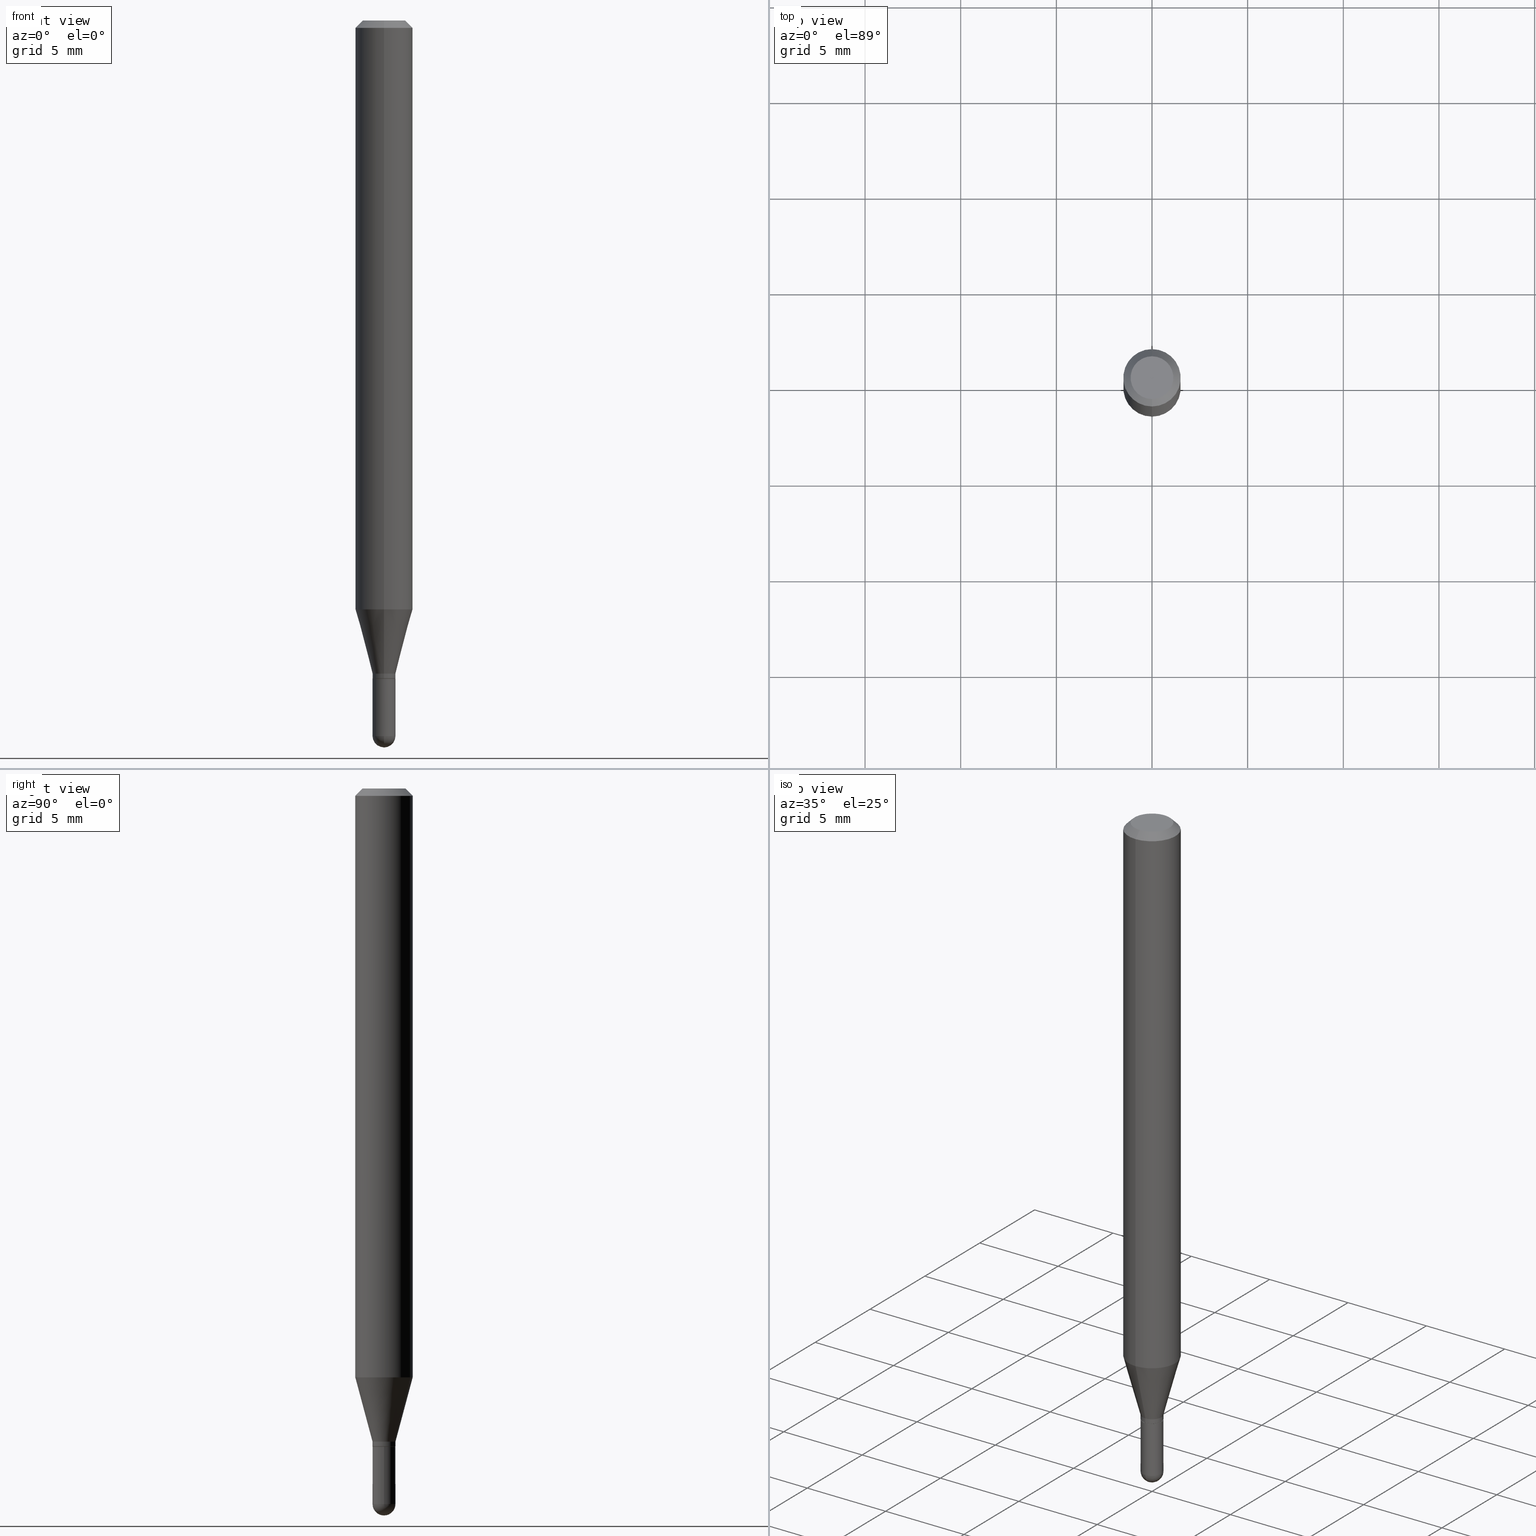
[diagram: canonical four-view strip — front | top / right | iso, engineering-drawing reading convention]
A machine part, canonical four-view strip (front | top / right | iso — engineering-drawing reading convention). The complete STEP part file that produces these views, byte-faithful:
ISO-10303-21;
HEADER;
FILE_DESCRIPTION (( 'STEP AP203' ),
    '1' );
FILE_NAME ('01951.STEP',
    '2024-03-07T19:46:55',
    ( '' ),
    ( '' ),
    'SwSTEP 2.0',
    'SolidWorks 2023',
    '' );
FILE_SCHEMA (( 'CONFIG_CONTROL_DESIGN' ));
ENDSEC;

DATA;
#1 = DIRECTION ( 'NONE',  ( -2.445468806185136597E-29, 3.491481338843145583E-15, 1.000000000000000000 ) ) ;
#2 = APPROVAL ( #85, 'UNSPECIFIED' ) ;
#3 = COORDINATED_UNIVERSAL_TIME_OFFSET ( 5, 0, .BEHIND. ) ;
#4 = AXIS2_PLACEMENT_3D ( 'NONE', #460, #348, #6 ) ;
#5 = AXIS2_PLACEMENT_3D ( 'NONE', #205, #214, #17 ) ;
#6 = DIRECTION ( 'NONE',  ( -6.982962677686265922E-15, -1.000000000000000000, 0.000000000000000000 ) ) ;
#7 = CARTESIAN_POINT ( 'NONE',  ( -1.647979191933643482E-16, -0.02360000000000488443, -1.344100000000000072 ) ) ;
#8 = DIRECTION ( 'NONE',  ( -6.982962677686265922E-15, -1.000000000000000000, 0.000000000000000000 ) ) ;
#9 = DIRECTION ( 'NONE',  ( 1.000000000000000000, -6.982962677686267499E-15, 4.876176775795935793E-29 ) ) ;
#10 = PRODUCT_DEFINITION_FORMATION_WITH_SPECIFIED_SOURCE ( 'ANY', '', #372, .NOT_KNOWN. ) ;
#11 = CALENDAR_DATE ( 2024, 7, 3 ) ;
#12 = FACE_OUTER_BOUND ( 'NONE', #91, .T. ) ;
#13 = EDGE_CURVE ( 'NONE', #356, #191, #442, .T. ) ;
#14 = APPROVAL_DATE_TIME ( #285, #2 ) ;
#15 = DIRECTION ( 'NONE',  ( -6.982962677686266711E-15, -1.000000000000000000, 0.000000000000000000 ) ) ;
#16 = CC_DESIGN_PERSON_AND_ORGANIZATION_ASSIGNMENT ( #274, #420, ( #10 ) ) ;
#17 = DIRECTION ( 'NONE',  ( -6.982962677686265922E-15, -1.000000000000000000, 3.491511898180612883E-15 ) ) ;
#18 = AXIS2_PLACEMENT_3D ( 'NONE', #391, #240, #395 ) ;
#19 = CARTESIAN_POINT ( 'NONE',  ( -1.647979191933972339E-16, -0.02360000000000019374, 8.239968079706313705E-17 ) ) ;
#20 = PLANE ( 'NONE',  #31 ) ;
#21 = DIRECTION ( 'NONE',  ( -2.445468806185136597E-29, 3.491481338843145583E-15, 1.000000000000000000 ) ) ;
#22 = ORIENTED_EDGE ( 'NONE', *, *, #499, .T. ) ;
#23 = LINE ( 'NONE', #411, #478 ) ;
#24 = PERSON_AND_ORGANIZATION_ROLE ( 'classification_officer' ) ;
#25 = ADVANCED_FACE ( 'NONE', ( #163 ), #474, .T. ) ;
#26 = COORDINATED_UNIVERSAL_TIME_OFFSET ( 5, 0, .BEHIND. ) ;
#27 = CARTESIAN_POINT ( 'NONE',  ( 1.676880856394178568E-16, 0.02359999999999550305, -1.344100000000000072 ) ) ;
#28 = CONICAL_SURFACE ( 'NONE', #277, 0.02360000000000019374, 0.2617993877991502960 ) ;
#29 = EDGE_CURVE ( 'NONE', #353, #492, #509, .T. ) ;
#30 = ORIENTED_EDGE ( 'NONE', *, *, #416, .T. ) ;
#31 = AXIS2_PLACEMENT_3D ( 'NONE', #493, #378, #264 ) ;
#32 = CARTESIAN_POINT ( 'NONE',  ( 0.000000000000000000, 0.000000000000000000, 0.000000000000000000 ) ) ;
#33 = CARTESIAN_POINT ( 'NONE',  ( -0.02360000000000000292, -4.767346212748459573E-15, -1.472499999999999698 ) ) ;
#34 = VERTEX_POINT ( 'NONE', #419 ) ;
#35 = ADVANCED_FACE ( 'NONE', ( #71 ), #185, .T. ) ;
#36 = EDGE_CURVE ( 'NONE', #308, #473, #383, .T. ) ;
#37 = LENGTH_MEASURE_WITH_UNIT ( LENGTH_MEASURE( 0.02539999999999999897 ), #126 );
#38 = LINE ( 'NONE', #79, #122 ) ;
#39 = APPROVAL_ROLE ( '' ) ;
#40 = DIRECTION ( 'NONE',  ( 6.982962677686265922E-15, 1.000000000000000000, -3.505890868245046092E-15 ) ) ;
#41 = EDGE_CURVE ( 'NONE', #144, #353, #161, .T. ) ;
#42 = CIRCLE ( 'NONE', #110, 0.02360000000000019721 ) ;
#43 = AXIS2_PLACEMENT_3D ( 'NONE', #447, #109, #66 ) ;
#44 = DIRECTION ( 'NONE',  ( 1.000000000000000000, -7.105427357601001070E-15, 4.926315508542082329E-29 ) ) ;
#45 = ORIENTED_EDGE ( 'NONE', *, *, #453, .T. ) ;
#46 = ORIENTED_EDGE ( 'NONE', *, *, #29, .T. ) ;
#47 = LINE ( 'NONE', #256, #347 ) ;
#48 = CARTESIAN_POINT ( 'NONE',  ( 0.000000000000000000, 0.000000000000000000, 0.000000000000000000 ) ) ;
#49 = ORIENTED_EDGE ( 'NONE', *, *, #219, .F. ) ;
#50 = CARTESIAN_POINT ( 'NONE',  ( 3.312114048917222674E-29, -4.728903714895822347E-15, -1.354400000000000270 ) ) ;
#51 = CIRCLE ( 'NONE', #336, 0.02309999999999999901 ) ;
#52 = CIRCLE ( 'NONE', #267, 0.02360000000000019374 ) ;
#53 = ORIENTED_EDGE ( 'NONE', *, *, #494, .F. ) ;
#54 = DIRECTION ( 'NONE',  ( -2.445447466713837781E-29, 3.491511898180612883E-15, 1.000000000000000000 ) ) ;
#55 = ORIENTED_EDGE ( 'NONE', *, *, #304, .T. ) ;
#56 = PLANE ( 'NONE',  #407 ) ;
#57 = ORIENTED_EDGE ( 'NONE', *, *, #171, .F. ) ;
#58 = DIRECTION ( 'NONE',  ( -2.445468806185136597E-29, 3.491481338843145583E-15, 1.000000000000000000 ) ) ;
#59 = ORIENTED_EDGE ( 'NONE', *, *, #84, .T. ) ;
#60 = VECTOR ( 'NONE', #289, 39.37007874015748143 ) ;
#61 = DIRECTION ( 'NONE',  ( 1.000000000000000000, -6.982962677686265133E-15, 4.883557194083112340E-29 ) ) ;
#62 = DIRECTION ( 'NONE',  ( 1.000000000000000000, -6.982962677686258033E-15, 0.000000000000000000 ) ) ;
#63 = FACE_OUTER_BOUND ( 'NONE', #106, .T. ) ;
#64 = CIRCLE ( 'NONE', #102, 0.02359999999999986067 ) ;
#65 = AXIS2_PLACEMENT_3D ( 'NONE', #450, #376, #302 ) ;
#66 = DIRECTION ( 'NONE',  ( -6.982962677686265922E-15, -1.000000000000000000, 3.491511898180612883E-15 ) ) ;
#67 = ADVANCED_FACE ( 'NONE', ( #463 ), #346, .T. ) ;
#68 = EDGE_CURVE ( 'NONE', #511, #190, #387, .T. ) ;
#69 = ORIENTED_EDGE ( 'NONE', *, *, #462, .F. ) ;
#70 = CALENDAR_DATE ( 2024, 7, 3 ) ;
#71 = FACE_OUTER_BOUND ( 'NONE', #351, .T. ) ;
#72 = ORIENTED_EDGE ( 'NONE', *, *, #96, .F. ) ;
#73 = DIRECTION ( 'NONE',  ( -2.445447466713837781E-29, 3.491511898180612883E-15, 1.000000000000000000 ) ) ;
#74 = CIRCLE ( 'NONE', #254, 0.02360000000000000292 ) ;
#75 = APPROVAL_PERSON_ORGANIZATION ( #151, #291, #39 ) ;
#76 = APPLICATION_PROTOCOL_DEFINITION ( 'international standard', 'config_control_design', 1994, #368 ) ;
#77 = CARTESIAN_POINT ( 'NONE',  ( 3.598934624665150371E-29, -5.144096437892519397E-15, -1.472499999999999920 ) ) ;
#78 = EDGE_LOOP ( 'NONE', ( #501, #46, #104, #87 ) ) ;
#79 = CARTESIAN_POINT ( 'NONE',  ( 1.641353719606162434E-16, 0.02309999999999527015, -1.354400000000000270 ) ) ;
#80 = EDGE_CURVE ( 'NONE', #93, #208, #64, .T. ) ;
#81 = CARTESIAN_POINT ( 'NONE',  ( 4.195754854663390985E-16, 0.05904999999999999832, -2.061737775875651784E-16 ) ) ;
#82 = CC_DESIGN_APPROVAL ( #279, ( #10 ) ) ;
#83 = CARTESIAN_POINT ( 'NONE',  ( 0.000000000000000000, 0.000000000000000000, 0.000000000000000000 ) ) ;
#84 = EDGE_CURVE ( 'NONE', #144, #166, #157, .T. ) ;
#85 = APPROVAL_STATUS ( 'not_yet_approved' ) ;
#86 = DIRECTION ( 'NONE',  ( -2.445468806185136597E-29, 3.491481338843145583E-15, 1.000000000000000000 ) ) ;
#87 = ORIENTED_EDGE ( 'NONE', *, *, #84, .F. ) ;
#88 = UNCERTAINTY_MEASURE_WITH_UNIT (LENGTH_MEASURE( 1.000000000000000082E-05 ), #239, 'distance_accuracy_value', 'NONE');
#89 = DIRECTION ( 'NONE',  ( -2.445447466713837781E-29, 3.491511898180612883E-15, 1.000000000000000000 ) ) ;
#90 = CC_DESIGN_PERSON_AND_ORGANIZATION_ASSIGNMENT ( #390, #24, ( #364 ) ) ;
#91 = EDGE_LOOP ( 'NONE', ( #45, #449, #361, #510, #115 ) ) ;
#92 = FACE_OUTER_BOUND ( 'NONE', #314, .T. ) ;
#93 = VERTEX_POINT ( 'NONE', #421 ) ;
#94 = APPROVAL_PERSON_ORGANIZATION ( #192, #279, #154 ) ;
#95 = MANIFOLD_SOLID_BREP ( 'Body-Move/Copy2[1]', #379 ) ;
#96 = EDGE_CURVE ( 'NONE', #301, #480, #74, .T. ) ;
#97 = FACE_OUTER_BOUND ( 'NONE', #245, .T. ) ;
#98 = ORIENTED_EDGE ( 'NONE', *, *, #448, .T. ) ;
#99 = DIRECTION ( 'NONE',  ( -2.445447466713837781E-29, 3.491511898180612883E-15, 1.000000000000000000 ) ) ;
#100 = VERTEX_POINT ( 'NONE', #310 ) ;
#101 = CARTESIAN_POINT ( 'NONE',  ( 4.195754854663685822E-16, 0.05904999999999574478, -1.211798798871684735 ) ) ;
#102 = AXIS2_PLACEMENT_3D ( 'NONE', #121, #44, #281 ) ;
#103 = AXIS2_PLACEMENT_3D ( 'NONE', #184, #337, #386 ) ;
#104 = ORIENTED_EDGE ( 'NONE', *, *, #128, .F. ) ;
#105 = CARTESIAN_POINT ( 'NONE',  ( 1.676880856394175610E-16, 0.02359999999999539202, -1.353900000000000103 ) ) ;
#106 = EDGE_LOOP ( 'NONE', ( #242, #394, #231, #153 ) ) ;
#107 = DIRECTION ( 'NONE',  ( -1.000000000000000000, 6.982962677686265922E-15, -4.876176775795935793E-29 ) ) ;
#108 = EDGE_CURVE ( 'NONE', #473, #429, #42, .T. ) ;
#109 = DIRECTION ( 'NONE',  ( -2.445447466713837781E-29, 3.491511898180612883E-15, 1.000000000000000000 ) ) ;
#110 = AXIS2_PLACEMENT_3D ( 'NONE', #118, #283, #431 ) ;
#111 = CIRCLE ( 'NONE', #307, 0.04404999999999999888 ) ;
#112 = ORIENTED_EDGE ( 'NONE', *, *, #164, .F. ) ;
#113 =( NAMED_UNIT ( * ) PLANE_ANGLE_UNIT ( ) SI_UNIT ( $, .RADIAN. ) );
#114 = DIRECTION ( 'NONE',  ( -2.445447466713837781E-29, 3.491511898180612883E-15, 1.000000000000000000 ) ) ;
#115 = ORIENTED_EDGE ( 'NONE', *, *, #369, .T. ) ;
#116 = ORIENTED_EDGE ( 'NONE', *, *, #189, .T. ) ;
#117 = PERSON_AND_ORGANIZATION ( #137, #179 ) ;
#118 = CARTESIAN_POINT ( 'NONE',  ( 3.310891325183864690E-29, -4.727157958946731511E-15, -1.353900000000000103 ) ) ;
#119 = ORIENTED_EDGE ( 'NONE', *, *, #462, .T. ) ;
#120 = APPROVAL_STATUS ( 'not_yet_approved' ) ;
#121 = CARTESIAN_POINT ( 'NONE',  ( 3.598934624665150371E-29, -5.144096437892519397E-15, -1.472499999999999920 ) ) ;
#122 = VECTOR ( 'NONE', #197, 39.37007874015748143 ) ;
#123 = AXIS2_PLACEMENT_3D ( 'NONE', #176, #414, #498 ) ;
#124 = CALENDAR_DATE ( 2024, 7, 3 ) ;
#125 = DIRECTION ( 'NONE',  ( -4.937700262164674260E-15, -0.7071067811865632269, 0.7071067811865319186 ) ) ;
#126 =( LENGTH_UNIT ( ) NAMED_UNIT ( * ) SI_UNIT ( $, .METRE. ) );
#127 = DIRECTION ( 'NONE',  ( 1.000000000000000000, -6.982962677686258033E-15, 0.000000000000000000 ) ) ;
#128 = EDGE_CURVE ( 'NONE', #166, #492, #435, .T. ) ;
#129 = DIRECTION ( 'NONE',  ( -6.982962677686265922E-15, -1.000000000000000000, 0.000000000000000000 ) ) ;
#130 = AXIS2_PLACEMENT_3D ( 'NONE', #135, #54, #329 ) ;
#131 = SHAPE_DEFINITION_REPRESENTATION ( #169, #342 ) ;
#132 = ORIENTED_EDGE ( 'NONE', *, *, #358, .T. ) ;
#133 = DIRECTION ( 'NONE',  ( -6.982962677686265922E-15, -1.000000000000000000, 0.000000000000000000 ) ) ;
#134 = CARTESIAN_POINT ( 'NONE',  ( 3.286925940010068942E-29, -4.692941142344561547E-15, -1.344100000000000072 ) ) ;
#135 = CARTESIAN_POINT ( 'NONE',  ( 3.310891325183864690E-29, -4.727157958946731511E-15, -1.353900000000000103 ) ) ;
#136 = ORIENTED_EDGE ( 'NONE', *, *, #381, .F. ) ;
#137 = PERSON ( 'UNSPECIFIED', 'UNSPECIFIED', 'UNSPECIFIED', ('UNSPECIFIED'), ('UNSPECIFIED'), ('UNSPECIFIED') ) ;
#138 = DIRECTION ( 'NONE',  ( -2.445447466713837781E-29, 3.491511898180612883E-15, 1.000000000000000000 ) ) ;
#139 = ORIENTED_EDGE ( 'NONE', *, *, #128, .T. ) ;
#140 = EDGE_LOOP ( 'NONE', ( #180, #284 ) ) ;
#141 = CARTESIAN_POINT ( 'NONE',  ( 5.835056949264010170E-46, -8.331060487794481597E-32, -2.386089674257075176E-17 ) ) ;
#142 = CARTESIAN_POINT ( 'NONE',  ( 3.598934624665150371E-29, -5.144096437892519397E-15, -1.472499999999999920 ) ) ;
#143 = DIRECTION ( 'NONE',  ( -1.000000000000000000, 6.982962677686265922E-15, -4.883557194083112340E-29 ) ) ;
#144 = VERTEX_POINT ( 'NONE', #7 ) ;
#145 = AXIS2_PLACEMENT_3D ( 'NONE', #475, #290, #129 ) ;
#146 = LOCAL_TIME ( 14, 46, 55.00000000000000000, #305 ) ;
#147 = CARTESIAN_POINT ( 'NONE',  ( -4.051124067684085231E-16, -0.05905000000000005383, -0.01499999999999981730 ) ) ;
#148 = EDGE_LOOP ( 'NONE', ( #55, #119 ) ) ;
#149 = DIRECTION ( 'NONE',  ( -2.445447466713837781E-29, 3.491511898180613277E-15, 1.000000000000000000 ) ) ;
#150 = ADVANCED_FACE ( 'NONE', ( #275 ), #457, .T. ) ;
#151 = PERSON_AND_ORGANIZATION ( #137, #179 ) ;
#152 = CIRCLE ( 'NONE', #331, 0.02360000000000000292 ) ;
#153 = ORIENTED_EDGE ( 'NONE', *, *, #448, .F. ) ;
#154 = APPROVAL_ROLE ( '' ) ;
#155 = CARTESIAN_POINT ( 'NONE',  ( -1.647979191933643482E-16, -0.02360000000000488443, -1.344100000000000072 ) ) ;
#156 = PERSON_AND_ORGANIZATION ( #137, #179 ) ;
#157 = LINE ( 'NONE', #155, #202 ) ;
#158 = VERTEX_POINT ( 'NONE', #33 ) ;
#159 = COORDINATED_UNIVERSAL_TIME_OFFSET ( 5, 0, .BEHIND. ) ;
#160 = DIRECTION ( 'NONE',  ( -6.982962677686265922E-15, -1.000000000000000000, 4.626330217890369336E-15 ) ) ;
#161 = CIRCLE ( 'NONE', #4, 0.02360000000000019374 ) ;
#162 = CONICAL_SURFACE ( 'NONE', #195, 0.02309999999999999901, 0.7853981633974739252 ) ;
#163 = FACE_OUTER_BOUND ( 'NONE', #248, .T. ) ;
#164 = EDGE_CURVE ( 'NONE', #100, #429, #38, .T. ) ;
#165 = DIRECTION ( 'NONE',  ( -2.445447466713837781E-29, 3.491511898180612883E-15, 1.000000000000000000 ) ) ;
#166 = VERTEX_POINT ( 'NONE', #316 ) ;
#167 = DIRECTION ( 'NONE',  ( 4.937700262164548042E-15, 0.7071067811865451302, -0.7071067811865499042 ) ) ;
#168 = COORDINATED_UNIVERSAL_TIME_OFFSET ( 5, 0, .BEHIND. ) ;
#169 = PRODUCT_DEFINITION_SHAPE ( 'NONE', 'NONE',  #313 ) ;
#170 = DIRECTION ( 'NONE',  ( -6.982962677686266711E-15, -1.000000000000000000, 0.000000000000000000 ) ) ;
#171 = EDGE_CURVE ( 'NONE', #492, #511, #350, .T. ) ;
#172 = CARTESIAN_POINT ( 'NONE',  ( 1.676880856394191140E-16, 0.02359999999999478834, -1.472499999999999698 ) ) ;
#173 = CYLINDRICAL_SURFACE ( 'NONE', #504, 0.02360000000000000292 ) ;
#174 = EDGE_CURVE ( 'NONE', #492, #166, #425, .T. ) ;
#175 = CARTESIAN_POINT ( 'NONE',  ( 5.835056949264010170E-46, -8.331060487794481597E-32, -2.386089674257075176E-17 ) ) ;
#176 = CARTESIAN_POINT ( 'NONE',  ( 3.312142951097148704E-29, -4.728862325329155827E-15, -1.354399999999999826 ) ) ;
#177 = AXIS2_PLACEMENT_3D ( 'NONE', #272, #73, #160 ) ;
#178 = DIMENSIONAL_EXPONENTS ( 1.000000000000000000, 0.000000000000000000, 0.000000000000000000, 0.000000000000000000, 0.000000000000000000, 0.000000000000000000, 0.000000000000000000 ) ;
#179 = ORGANIZATION ( 'UNSPECIFIED', 'UNSPECIFIED', '' ) ;
#180 = ORIENTED_EDGE ( 'NONE', *, *, #189, .F. ) ;
#181 = SPHERICAL_SURFACE ( 'NONE', #247, 0.02359999999999986067 ) ;
#182 = CARTESIAN_POINT ( 'NONE',  ( 3.600952817107612585E-29, -5.141206271446529958E-15, -1.472499999999999698 ) ) ;
#183 = APPLICATION_CONTEXT ( 'configuration controlled 3d designs of mechanical parts and assemblies' ) ;
#184 = CARTESIAN_POINT ( 'NONE',  ( 3.668171200070762347E-31, -5.237267847270927755E-17, -0.01500000000000002373 ) ) ;
#185 = CONICAL_SURFACE ( 'NONE', #292, 0.05904999999999999832, 0.7853981633974483900 ) ;
#186 = CIRCLE ( 'NONE', #402, 0.02359999999999986067 ) ;
#187 = VERTEX_POINT ( 'NONE', #204 ) ;
#188 = CYLINDRICAL_SURFACE ( 'NONE', #287, 0.02360000000000019374 ) ;
#189 = EDGE_CURVE ( 'NONE', #308, #100, #324, .T. ) ;
#190 = VERTEX_POINT ( 'NONE', #405 ) ;
#191 = VERTEX_POINT ( 'NONE', #327 ) ;
#192 = PERSON_AND_ORGANIZATION ( #137, #179 ) ;
#193 = DIRECTION ( 'NONE',  ( 6.982962677686265922E-15, 1.000000000000000000, -3.505890868245046092E-15 ) ) ;
#194 = AXIS2_PLACEMENT_3D ( 'NONE', #175, #295, #198 ) ;
#195 = AXIS2_PLACEMENT_3D ( 'NONE', #434, #89, #15 ) ;
#196 = ORIENTED_EDGE ( 'NONE', *, *, #108, .F. ) ;
#197 = DIRECTION ( 'NONE',  ( 5.024295867788190974E-15, 0.7071067811865681119, 0.7071067811865270336 ) ) ;
#198 = DIRECTION ( 'NONE',  ( -6.982962677686265133E-15, -1.000000000000000000, 3.491511898180612883E-15 ) ) ;
#199 = CARTESIAN_POINT ( 'NONE',  ( -1.613064378545196401E-16, -0.02310000000000472786, -1.354400000000000270 ) ) ;
#200 = ADVANCED_FACE ( 'NONE', ( #401 ), #306, .T. ) ;
#201 = EDGE_LOOP ( 'NONE', ( #259, #404, #360, #72 ) ) ;
#202 = VECTOR ( 'NONE', #237, 39.37007874015748143 ) ;
#203 = AXIS2_PLACEMENT_3D ( 'NONE', #32, #343, #269 ) ;
#204 = CARTESIAN_POINT ( 'NONE',  ( -0.02360000000000000292, -4.767346212748459573E-15, -1.354399999999999826 ) ) ;
#205 = CARTESIAN_POINT ( 'NONE',  ( 0.000000000000000000, 0.000000000000000000, 0.000000000000000000 ) ) ;
#206 = ADVANCED_FACE ( 'NONE', ( #12 ), #173, .T. ) ;
#207 = CARTESIAN_POINT ( 'NONE',  ( -4.123439461173739834E-16, -0.05904999999999999832, 2.061737775875651784E-16 ) ) ;
#208 = VERTEX_POINT ( 'NONE', #172 ) ;
#209 = CIRCLE ( 'NONE', #130, 0.02360000000000019721 ) ;
#210 = FACE_OUTER_BOUND ( 'NONE', #78, .T. ) ;
#211 = ORIENTED_EDGE ( 'NONE', *, *, #494, .T. ) ;
#212 = DIRECTION ( 'NONE',  ( -2.445447466713837781E-29, 3.491511898180612883E-15, 1.000000000000000000 ) ) ;
#213 = ORIENTED_EDGE ( 'NONE', *, *, #416, .F. ) ;
#214 = DIRECTION ( 'NONE',  ( -2.445447466713837781E-29, 3.491511898180612883E-15, 1.000000000000000000 ) ) ;
#215 = ADVANCED_FACE ( 'NONE', ( #92 ), #398, .T. ) ;
#216 = LINE ( 'NONE', #147, #349 ) ;
#217 = VECTOR ( 'NONE', #427, 39.37007874015748143 ) ;
#218 = CC_DESIGN_APPROVAL ( #2, ( #364 ) ) ;
#219 = EDGE_CURVE ( 'NONE', #166, #190, #326, .T. ) ;
#220 = DIRECTION ( 'NONE',  ( -2.445447466713837781E-29, 3.491511898180613277E-15, 1.000000000000000000 ) ) ;
#221 = ORIENTED_EDGE ( 'NONE', *, *, #29, .F. ) ;
#222 = DIRECTION ( 'NONE',  ( 2.438088387897960049E-29, -3.491481338843145188E-15, -1.000000000000000000 ) ) ;
#223 = DIRECTION ( 'NONE',  ( -6.982962677686265133E-15, -1.000000000000000000, 3.491511898180612883E-15 ) ) ;
#224 = EDGE_CURVE ( 'NONE', #480, #34, #47, .T. ) ;
#225 = VECTOR ( 'NONE', #393, 39.37007874015748143 ) ;
#226 = AXIS2_PLACEMENT_3D ( 'NONE', #410, #222, #107 ) ;
#227 = CYLINDRICAL_SURFACE ( 'NONE', #65, 0.02360000000000019374 ) ;
#228 = ADVANCED_FACE ( 'NONE', ( #400 ), #56, .F. ) ;
#229 = ORIENTED_EDGE ( 'NONE', *, *, #490, .T. ) ;
#230 = EDGE_CURVE ( 'NONE', #429, #473, #209, .T. ) ;
#231 = ORIENTED_EDGE ( 'NONE', *, *, #41, .F. ) ;
#232 = CARTESIAN_POINT ( 'NONE',  ( 3.312114048917222674E-29, -4.728903714895822347E-15, -1.354400000000000270 ) ) ;
#233 = VECTOR ( 'NONE', #167, 39.37007874015748143 ) ;
#234 = LOCAL_TIME ( 14, 46, 55.00000000000000000, #3 ) ;
#235 = ORIENTED_EDGE ( 'NONE', *, *, #174, .F. ) ;
#236 = APPROVAL_DATE_TIME ( #241, #291 ) ;
#237 = DIRECTION ( 'NONE',  ( -1.807323732225330928E-15, -0.2588190451025182970, 0.9659258262890689783 ) ) ;
#238 = ADVANCED_FACE ( 'NONE', ( #210 ), #28, .T. ) ;
#239 =( CONVERSION_BASED_UNIT ( 'INCH', #37 ) LENGTH_UNIT ( ) NAMED_UNIT ( #178 ) );
#240 = DIRECTION ( 'NONE',  ( -2.445447466713837781E-29, 3.491511898180612883E-15, 1.000000000000000000 ) ) ;
#241 = DATE_AND_TIME ( #124, #317 ) ;
#242 = ORIENTED_EDGE ( 'NONE', *, *, #108, .T. ) ;
#243 = CARTESIAN_POINT ( 'NONE',  ( 3.668171200070762347E-31, -5.237267847270927755E-17, -0.01500000000000002373 ) ) ;
#244 = EDGE_CURVE ( 'NONE', #356, #511, #253, .T. ) ;
#245 = EDGE_LOOP ( 'NONE', ( #57, #507, #397, #340 ) ) ;
#246 = AXIS2_PLACEMENT_3D ( 'NONE', #232, #433, #389 ) ;
#247 = AXIS2_PLACEMENT_3D ( 'NONE', #265, #61, #406 ) ;
#248 = EDGE_LOOP ( 'NONE', ( #344, #229, #53, #377 ) ) ;
#249 = CARTESIAN_POINT ( 'NONE',  ( 3.312114048917222674E-29, -4.728903714895822347E-15, -1.354400000000000270 ) ) ;
#250 = DESIGN_CONTEXT ( 'detailed design', #183, 'design' ) ;
#251 = ORIENTED_EDGE ( 'NONE', *, *, #358, .F. ) ;
#252 = DIRECTION ( 'NONE',  ( 1.000000000000000000, -6.982962677686258033E-15, 0.000000000000000000 ) ) ;
#253 = LINE ( 'NONE', #367, #233 ) ;
#254 = AXIS2_PLACEMENT_3D ( 'NONE', #354, #1, #127 ) ;
#255 = ORIENTED_EDGE ( 'NONE', *, *, #36, .T. ) ;
#256 = CARTESIAN_POINT ( 'NONE',  ( 0.02360000000000000292, -1.647979191933959273E-16, 1.150777719087840955E-30 ) ) ;
#257 = EDGE_CURVE ( 'NONE', #100, #308, #51, .T. ) ;
#258 = CYLINDRICAL_SURFACE ( 'NONE', #5, 0.05904999999999999832 ) ;
#259 = ORIENTED_EDGE ( 'NONE', *, *, #490, .F. ) ;
#260 = ORIENTED_EDGE ( 'NONE', *, *, #471, .F. ) ;
#261 = CYLINDRICAL_SURFACE ( 'NONE', #43, 0.05904999999999999832 ) ;
#262 = ORIENTED_EDGE ( 'NONE', *, *, #164, .T. ) ;
#263 = AXIS2_PLACEMENT_3D ( 'NONE', #357, #165, #170 ) ;
#264 = DIRECTION ( 'NONE',  ( 6.982962677686265922E-15, 1.000000000000000000, -3.491511898180613277E-15 ) ) ;
#265 = CARTESIAN_POINT ( 'NONE',  ( 3.598934624665150371E-29, -5.144096437892519397E-15, -1.472499999999999920 ) ) ;
#266 = FACE_OUTER_BOUND ( 'NONE', #298, .T. ) ;
#267 = AXIS2_PLACEMENT_3D ( 'NONE', #481, #477, #133 ) ;
#268 = EDGE_LOOP ( 'NONE', ( #221, #132, #59, #235 ) ) ;
#269 = DIRECTION ( 'NONE',  ( 1.000000000000000000, 0.000000000000000000, 0.000000000000000000 ) ) ;
#270 = CC_DESIGN_PERSON_AND_ORGANIZATION_ASSIGNMENT ( #117, #472, ( #10 ) ) ;
#271 = CARTESIAN_POINT ( 'NONE',  ( 3.668171200070762347E-31, -5.237267847270927755E-17, -0.01500000000000002373 ) ) ;
#272 = CARTESIAN_POINT ( 'NONE',  ( 2.963390302867632407E-29, -4.231009924461461334E-15, -1.211798798871684513 ) ) ;
#273 = MANIFOLD_SOLID_BREP ( 'Body-Move/Copy2[2]', #466 ) ;
#274 = PERSON_AND_ORGANIZATION ( #137, #179 ) ;
#275 = FACE_OUTER_BOUND ( 'NONE', #363, .T. ) ;
#276 = ORIENTED_EDGE ( 'NONE', *, *, #68, .T. ) ;
#277 = AXIS2_PLACEMENT_3D ( 'NONE', #134, #212, #8 ) ;
#278 = CC_DESIGN_SECURITY_CLASSIFICATION ( #364, ( #10 ) ) ;
#279 = APPROVAL ( #120, 'UNSPECIFIED' ) ;
#280 = DATE_AND_TIME ( #512, #234 ) ;
#281 = DIRECTION ( 'NONE',  ( 7.105427357601001070E-15, 1.000000000000000000, 0.000000000000000000 ) ) ;
#282 = ADVANCED_FACE ( 'NONE', ( #321 ), #162, .T. ) ;
#283 = DIRECTION ( 'NONE',  ( -2.445447466713837781E-29, 3.491511898180612883E-15, 1.000000000000000000 ) ) ;
#284 = ORIENTED_EDGE ( 'NONE', *, *, #257, .F. ) ;
#285 = DATE_AND_TIME ( #11, #426 ) ;
#286 = DIRECTION ( 'NONE',  ( -2.445468806185136877E-29, 3.491481338843145188E-15, 1.000000000000000000 ) ) ;
#287 = AXIS2_PLACEMENT_3D ( 'NONE', #489, #332, #341 ) ;
#288 = CARTESIAN_POINT ( 'NONE',  ( -1.613064378545196401E-16, -0.02310000000000472786, -1.354400000000000270 ) ) ;
#289 = DIRECTION ( 'NONE',  ( -2.445447466713837781E-29, 3.491511898180613277E-15, 1.000000000000000000 ) ) ;
#290 = DIRECTION ( 'NONE',  ( -2.445447466713837781E-29, 3.491511898180612883E-15, 1.000000000000000000 ) ) ;
#291 = APPROVAL ( #464, 'UNSPECIFIED' ) ;
#292 = AXIS2_PLACEMENT_3D ( 'NONE', #312, #320, #40 ) ;
#293 = CIRCLE ( 'NONE', #325, 0.02360000000000000292 ) ;
#294 = CARTESIAN_POINT ( 'NONE',  ( -1.647979191933593685E-16, -0.02360000000000507178, -1.472499999999999698 ) ) ;
#295 = DIRECTION ( 'NONE',  ( -2.445447466713837781E-29, 3.491511898180612883E-15, 1.000000000000000000 ) ) ;
#296 = CARTESIAN_POINT ( 'NONE',  ( -1.647979191933647180E-16, -0.02360000000000500586, -1.353900000000000103 ) ) ;
#297 = DIRECTION ( 'NONE',  ( -6.982962677686265133E-15, -1.000000000000000000, 0.000000000000000000 ) ) ;
#298 = EDGE_LOOP ( 'NONE', ( #260, #436, #98, #251 ) ) ;
#299 = AXIS2_PLACEMENT_3D ( 'NONE', #271, #465, #193 ) ;
#300 = CARTESIAN_POINT ( 'NONE',  ( 3.600952817107612585E-29, -5.141206271446529958E-15, -1.472499999999999698 ) ) ;
#301 = VERTEX_POINT ( 'NONE', #294 ) ;
#302 = DIRECTION ( 'NONE',  ( -6.982962677686265922E-15, -1.000000000000000000, 3.491511898180612883E-15 ) ) ;
#303 = FACE_OUTER_BOUND ( 'NONE', #148, .T. ) ;
#304 = EDGE_CURVE ( 'NONE', #34, #187, #496, .T. ) ;
#305 = COORDINATED_UNIVERSAL_TIME_OFFSET ( 5, 0, .BEHIND. ) ;
#306 = CONICAL_SURFACE ( 'NONE', #145, 0.02360000000000019374, 0.2617993877991502960 ) ;
#307 = AXIS2_PLACEMENT_3D ( 'NONE', #141, #99, #223 ) ;
#308 = VERTEX_POINT ( 'NONE', #288 ) ;
#309 = PERSON_AND_ORGANIZATION ( #137, #179 ) ;
#310 = CARTESIAN_POINT ( 'NONE',  ( 1.659117288000171610E-16, 0.02309999999999527015, -1.354400000000000270 ) ) ;
#311 = APPLICATION_PROTOCOL_DEFINITION ( 'international standard', 'config_control_design', 1994, #183 ) ;
#312 = CARTESIAN_POINT ( 'NONE',  ( 3.668171200070762347E-31, -5.237267847270927755E-17, -0.01500000000000002373 ) ) ;
#313 = PRODUCT_DEFINITION ( 'UNKNOWN', '', #10, #250 ) ;
#314 = EDGE_LOOP ( 'NONE', ( #136, #211, #428, #439, #69 ) ) ;
#315 = PERSON_AND_ORGANIZATION_ROLE ( 'creator' ) ;
#316 = CARTESIAN_POINT ( 'NONE',  ( -4.123439461173444997E-16, -0.05905000000000425187, -1.211798798871684291 ) ) ;
#317 = LOCAL_TIME ( 14, 46, 55.00000000000000000, #26 ) ;
#318 = APPROVAL_DATE_TIME ( #430, #279 ) ;
#319 = ORIENTED_EDGE ( 'NONE', *, *, #13, .F. ) ;
#320 = DIRECTION ( 'NONE',  ( 2.445447466713837781E-29, -3.491511898180612883E-15, -1.000000000000000000 ) ) ;
#321 = FACE_OUTER_BOUND ( 'NONE', #417, .T. ) ;
#322 = EDGE_LOOP ( 'NONE', ( #484, #30 ) ) ;
#323 = DIRECTION ( 'NONE',  ( 1.000000000000000000, -6.982962677686258033E-15, 0.000000000000000000 ) ) ;
#324 = CIRCLE ( 'NONE', #263, 0.02309999999999999901 ) ;
#325 = AXIS2_PLACEMENT_3D ( 'NONE', #182, #58, #497 ) ;
#326 = LINE ( 'NONE', #207, #60 ) ;
#327 = CARTESIAN_POINT ( 'NONE',  ( -3.536586717851222218E-16, -0.04404999999999999888, 1.299402023722852292E-16 ) ) ;
#328 = CC_DESIGN_PERSON_AND_ORGANIZATION_ASSIGNMENT ( #418, #315, ( #313 ) ) ;
#329 = DIRECTION ( 'NONE',  ( -6.982962677686265922E-15, -1.000000000000000000, 0.000000000000000000 ) ) ;
#330 = AXIS2_PLACEMENT_3D ( 'NONE', #77, #469, #352 ) ;
#331 = AXIS2_PLACEMENT_3D ( 'NONE', #300, #21, #62 ) ;
#332 = DIRECTION ( 'NONE',  ( -2.445447466713837781E-29, 3.491511898180612883E-15, 1.000000000000000000 ) ) ;
#333 = ORIENTED_EDGE ( 'NONE', *, *, #499, .F. ) ;
#334 = FACE_OUTER_BOUND ( 'NONE', #322, .T. ) ;
#335 = LINE ( 'NONE', #446, #443 ) ;
#336 = AXIS2_PLACEMENT_3D ( 'NONE', #249, #138, #440 ) ;
#337 = DIRECTION ( 'NONE',  ( -2.445447466713837781E-29, 3.491511898180612883E-15, 1.000000000000000000 ) ) ;
#338 = CIRCLE ( 'NONE', #408, 0.02360000000000000292 ) ;
#339 = ADVANCED_FACE ( 'NONE', ( #97 ), #258, .T. ) ;
#340 = ORIENTED_EDGE ( 'NONE', *, *, #68, .F. ) ;
#341 = DIRECTION ( 'NONE',  ( -6.982962677686265922E-15, -1.000000000000000000, 3.491511898180612883E-15 ) ) ;
#342 = ADVANCED_BREP_SHAPE_REPRESENTATION ( '01951', ( #95, #273, #203 ), #396 ) ;
#343 = DIRECTION ( 'NONE',  ( 0.000000000000000000, 0.000000000000000000, 1.000000000000000000 ) ) ;
#344 = ORIENTED_EDGE ( 'NONE', *, *, #80, .F. ) ;
#345 = DATE_AND_TIME ( #458, #146 ) ;
#346 = CONICAL_SURFACE ( 'NONE', #299, 0.05904999999999999832, 0.7853981633974483900 ) ;
#347 = VECTOR ( 'NONE', #286, 39.37007874015748143 ) ;
#348 = DIRECTION ( 'NONE',  ( -2.445447466713837781E-29, 3.491511898180612883E-15, 1.000000000000000000 ) ) ;
#349 = VECTOR ( 'NONE', #374, 39.37007874015748143 ) ;
#350 = LINE ( 'NONE', #81, #217 ) ;
#351 = EDGE_LOOP ( 'NONE', ( #422, #319, #470, #276 ) ) ;
#352 = DIRECTION ( 'NONE',  ( -6.982962677686265133E-15, -1.000000000000000000, 0.000000000000000000 ) ) ;
#353 = VERTEX_POINT ( 'NONE', #366 ) ;
#354 = CARTESIAN_POINT ( 'NONE',  ( 3.600952817107612585E-29, -5.141206271446529958E-15, -1.472499999999999698 ) ) ;
#355 = CIRCLE ( 'NONE', #123, 0.02360000000000000292 ) ;
#356 = VERTEX_POINT ( 'NONE', #359 ) ;
#357 = CARTESIAN_POINT ( 'NONE',  ( 3.312114048917222674E-29, -4.728903714895822347E-15, -1.354400000000000270 ) ) ;
#358 = EDGE_CURVE ( 'NONE', #353, #144, #52, .T. ) ;
#359 = CARTESIAN_POINT ( 'NONE',  ( 3.599717260347271507E-16, 0.04404999999999999888, -1.776619958574267450E-16 ) ) ;
#360 = ORIENTED_EDGE ( 'NONE', *, *, #369, .F. ) ;
#361 = ORIENTED_EDGE ( 'NONE', *, *, #304, .F. ) ;
#362 = DIRECTION ( 'NONE',  ( -2.445468806185136597E-29, 3.491481338843145583E-15, 1.000000000000000000 ) ) ;
#363 = EDGE_LOOP ( 'NONE', ( #112, #476, #255, #423 ) ) ;
#364 = SECURITY_CLASSIFICATION ( '', '', #424 ) ;
#365 = CC_DESIGN_DATE_AND_TIME_ASSIGNMENT ( #280, #467, ( #313 ) ) ;
#366 = CARTESIAN_POINT ( 'NONE',  ( 2.936317855528934537E-16, 0.02359999999999549958, -1.344100000000000072 ) ) ;
#367 = CARTESIAN_POINT ( 'NONE',  ( 4.123439461173743285E-16, 0.05904999999999994975, -0.01500000000000023016 ) ) ;
#368 = APPLICATION_CONTEXT ( 'configuration controlled 3d designs of mechanical parts and assemblies' ) ;
#369 = EDGE_CURVE ( 'NONE', #480, #208, #338, .T. ) ;
#370 = DIRECTION ( 'NONE',  ( 1.000000000000000000, -6.982962677686267499E-15, 4.876176775795935793E-29 ) ) ;
#371 = AXIS2_PLACEMENT_3D ( 'NONE', #48, #362, #9 ) ;
#372 = PRODUCT ( '01951', '01951', '', ( #432 ) ) ;
#373 = APPROVAL_PERSON_ORGANIZATION ( #309, #2, #483 ) ;
#374 = DIRECTION ( 'NONE',  ( -4.851104656540964275E-15, -0.7071067811865500152, -0.7071067811865450192 ) ) ;
#375 = ADVANCED_FACE ( 'NONE', ( #266 ), #227, .T. ) ;
#376 = DIRECTION ( 'NONE',  ( -2.445447466713837781E-29, 3.491511898180612883E-15, 1.000000000000000000 ) ) ;
#377 = ORIENTED_EDGE ( 'NONE', *, *, #453, .F. ) ;
#378 = DIRECTION ( 'NONE',  ( 2.445447466713837220E-29, -3.491511898180613277E-15, -1.000000000000000000 ) ) ;
#379 = CLOSED_SHELL ( 'NONE', ( #206, #384, #392, #25, #215 ) ) ;
#380 = LINE ( 'NONE', #19, #415 ) ;
#381 = EDGE_CURVE ( 'NONE', #158, #187, #23, .T. ) ;
#382 = PLANE ( 'NONE',  #226 ) ;
#383 = LINE ( 'NONE', #199, #468 ) ;
#384 = ADVANCED_FACE ( 'NONE', ( #413 ), #181, .T. ) ;
#385 = ORIENTED_EDGE ( 'NONE', *, *, #487, .T. ) ;
#386 = DIRECTION ( 'NONE',  ( -6.982962677686265922E-15, -1.000000000000000000, 3.505890868245046092E-15 ) ) ;
#387 = CIRCLE ( 'NONE', #495, 0.05904999999999999832 ) ;
#388 = CIRCLE ( 'NONE', #103, 0.05904999999999999832 ) ;
#389 = DIRECTION ( 'NONE',  ( -6.982962677686266711E-15, -1.000000000000000000, 0.000000000000000000 ) ) ;
#390 = PERSON_AND_ORGANIZATION ( #137, #179 ) ;
#391 = CARTESIAN_POINT ( 'NONE',  ( 2.963390302867632407E-29, -4.231009924461461334E-15, -1.211798798871684513 ) ) ;
#392 = ADVANCED_FACE ( 'NONE', ( #303 ), #382, .F. ) ;
#393 = DIRECTION ( 'NONE',  ( 1.839019923739601104E-15, 0.2588190451025250693, 0.9659258262890670910 ) ) ;
#394 = ORIENTED_EDGE ( 'NONE', *, *, #471, .T. ) ;
#395 = DIRECTION ( 'NONE',  ( -6.982962677686265922E-15, -1.000000000000000000, 4.626330217890369336E-15 ) ) ;
#396 =( GEOMETRIC_REPRESENTATION_CONTEXT ( 3 ) GLOBAL_UNCERTAINTY_ASSIGNED_CONTEXT ( ( #88 ) ) GLOBAL_UNIT_ASSIGNED_CONTEXT ( ( #239, #113, #500 ) ) REPRESENTATION_CONTEXT ( 'NONE', 'WORKASPACE' ) );
#397 = ORIENTED_EDGE ( 'NONE', *, *, #219, .T. ) ;
#398 = CYLINDRICAL_SURFACE ( 'NONE', #371, 0.02360000000000000292 ) ;
#399 = ADVANCED_FACE ( 'NONE', ( #334 ), #20, .F. ) ;
#400 = FACE_OUTER_BOUND ( 'NONE', #140, .T. ) ;
#401 = FACE_OUTER_BOUND ( 'NONE', #268, .T. ) ;
#402 = AXIS2_PLACEMENT_3D ( 'NONE', #142, #143, #297 ) ;
#403 = DIRECTION ( 'NONE',  ( -2.445447466713837220E-29, 3.491511898180613277E-15, 1.000000000000000000 ) ) ;
#404 = ORIENTED_EDGE ( 'NONE', *, *, #80, .T. ) ;
#405 = CARTESIAN_POINT ( 'NONE',  ( -4.123439461173736383E-16, -0.05905000000000005383, -0.01499999999999981730 ) ) ;
#406 = DIRECTION ( 'NONE',  ( -6.982962677686265133E-15, -1.000000000000000000, 0.000000000000000000 ) ) ;
#407 = AXIS2_PLACEMENT_3D ( 'NONE', #50, #403, #479 ) ;
#408 = AXIS2_PLACEMENT_3D ( 'NONE', #437, #86, #252 ) ;
#409 = AXIS2_PLACEMENT_3D ( 'NONE', #444, #485, #323 ) ;
#410 = CARTESIAN_POINT ( 'NONE',  ( 1.647979191934290102E-16, 0.02359999999999527059, -1.354399999999999826 ) ) ;
#411 = CARTESIAN_POINT ( 'NONE',  ( -0.02360000000000000292, 1.676880856393836646E-16, -1.160868681300157803E-30 ) ) ;
#412 = ADVANCED_FACE ( 'NONE', ( #63 ), #188, .T. ) ;
#413 = FACE_OUTER_BOUND ( 'NONE', #201, .T. ) ;
#414 = DIRECTION ( 'NONE',  ( -2.445468806185136597E-29, 3.491481338843145583E-15, 1.000000000000000000 ) ) ;
#415 = VECTOR ( 'NONE', #220, 39.37007874015748143 ) ;
#416 = EDGE_CURVE ( 'NONE', #191, #356, #111, .T. ) ;
#417 = EDGE_LOOP ( 'NONE', ( #116, #262, #196, #502 ) ) ;
#418 = PERSON_AND_ORGANIZATION ( #137, #179 ) ;
#419 = CARTESIAN_POINT ( 'NONE',  ( 0.02360000000000000292, -4.893660244522551286E-15, -1.354399999999999826 ) ) ;
#420 = PERSON_AND_ORGANIZATION_ROLE ( 'design_supplier' ) ;
#421 = CARTESIAN_POINT ( 'NONE',  ( 3.655638592269887387E-29, -5.227940480712210662E-15, -1.496099999999999985 ) ) ;
#422 = ORIENTED_EDGE ( 'NONE', *, *, #487, .F. ) ;
#423 = ORIENTED_EDGE ( 'NONE', *, *, #230, .F. ) ;
#424 = SECURITY_CLASSIFICATION_LEVEL ( 'unclassified' ) ;
#425 = CIRCLE ( 'NONE', #18, 0.05904999999999999832 ) ;
#426 = LOCAL_TIME ( 14, 46, 55.00000000000000000, #168 ) ;
#427 = DIRECTION ( 'NONE',  ( -2.445447466713837781E-29, 3.491511898180613277E-15, 1.000000000000000000 ) ) ;
#428 = ORIENTED_EDGE ( 'NONE', *, *, #96, .T. ) ;
#429 = VERTEX_POINT ( 'NONE', #105 ) ;
#430 = DATE_AND_TIME ( #70, #459 ) ;
#431 = DIRECTION ( 'NONE',  ( -6.982962677686265922E-15, -1.000000000000000000, 0.000000000000000000 ) ) ;
#432 = MECHANICAL_CONTEXT ( 'NONE', #368, 'mechanical' ) ;
#433 = DIRECTION ( 'NONE',  ( -2.445447466713837781E-29, 3.491511898180612883E-15, 1.000000000000000000 ) ) ;
#434 = CARTESIAN_POINT ( 'NONE',  ( 3.312114048917222674E-29, -4.728903714895822347E-15, -1.354400000000000270 ) ) ;
#435 = CIRCLE ( 'NONE', #177, 0.05904999999999999832 ) ;
#436 = ORIENTED_EDGE ( 'NONE', *, *, #230, .T. ) ;
#437 = CARTESIAN_POINT ( 'NONE',  ( 3.600952817107612585E-29, -5.141206271446529958E-15, -1.472499999999999698 ) ) ;
#438 = CC_DESIGN_PERSON_AND_ORGANIZATION_ASSIGNMENT ( #156, #508, ( #372 ) ) ;
#439 = ORIENTED_EDGE ( 'NONE', *, *, #224, .T. ) ;
#440 = DIRECTION ( 'NONE',  ( -6.982962677686266711E-15, -1.000000000000000000, 0.000000000000000000 ) ) ;
#441 = DIRECTION ( 'NONE',  ( -2.445468806185136597E-29, 3.491481338843145583E-15, 1.000000000000000000 ) ) ;
#442 = CIRCLE ( 'NONE', #194, 0.04404999999999999888 ) ;
#443 = VECTOR ( 'NONE', #149, 39.37007874015748143 ) ;
#444 = CARTESIAN_POINT ( 'NONE',  ( 3.312142951097148704E-29, -4.728862325329155827E-15, -1.354399999999999826 ) ) ;
#445 = EDGE_LOOP ( 'NONE', ( #213, #385, #22, #451 ) ) ;
#446 = CARTESIAN_POINT ( 'NONE',  ( 1.676880856393849958E-16, 0.02360000000000019374, -8.239968079706313705E-17 ) ) ;
#447 = CARTESIAN_POINT ( 'NONE',  ( 0.000000000000000000, 0.000000000000000000, 0.000000000000000000 ) ) ;
#448 = EDGE_CURVE ( 'NONE', #473, #144, #380, .T. ) ;
#449 = ORIENTED_EDGE ( 'NONE', *, *, #381, .T. ) ;
#450 = CARTESIAN_POINT ( 'NONE',  ( 0.000000000000000000, 0.000000000000000000, 0.000000000000000000 ) ) ;
#451 = ORIENTED_EDGE ( 'NONE', *, *, #244, .F. ) ;
#452 = DIRECTION ( 'NONE',  ( -2.445468806185136877E-29, 3.491481338843145188E-15, 1.000000000000000000 ) ) ;
#453 = EDGE_CURVE ( 'NONE', #208, #158, #293, .T. ) ;
#454 = EDGE_LOOP ( 'NONE', ( #139, #456, #333, #49 ) ) ;
#455 = CARTESIAN_POINT ( 'NONE',  ( 0.02360000000000000292, -5.099832217581239141E-15, -1.472499999999999698 ) ) ;
#456 = ORIENTED_EDGE ( 'NONE', *, *, #171, .T. ) ;
#457 = CONICAL_SURFACE ( 'NONE', #246, 0.02309999999999999901, 0.7853981633974739252 ) ;
#458 = CALENDAR_DATE ( 2024, 7, 3 ) ;
#459 = LOCAL_TIME ( 14, 46, 55.00000000000000000, #159 ) ;
#460 = CARTESIAN_POINT ( 'NONE',  ( 3.286925940010068942E-29, -4.692941142344561547E-15, -1.344100000000000072 ) ) ;
#461 = CARTESIAN_POINT ( 'NONE',  ( 4.195754854663689766E-16, 0.05904999999999995669, -0.01500000000000023016 ) ) ;
#462 = EDGE_CURVE ( 'NONE', #187, #34, #355, .T. ) ;
#463 = FACE_OUTER_BOUND ( 'NONE', #445, .T. ) ;
#464 = APPROVAL_STATUS ( 'not_yet_approved' ) ;
#465 = DIRECTION ( 'NONE',  ( 2.445447466713837781E-29, -3.491511898180612883E-15, -1.000000000000000000 ) ) ;
#466 = CLOSED_SHELL ( 'NONE', ( #412, #282, #67, #482, #238, #200, #339, #35, #399, #228, #150, #375 ) ) ;
#467 = DATE_TIME_ROLE ( 'creation_date' ) ;
#468 = VECTOR ( 'NONE', #125, 39.37007874015748143 ) ;
#469 = DIRECTION ( 'NONE',  ( 1.000000000000000000, -6.982962677686265133E-15, 4.883557194083112340E-29 ) ) ;
#470 = ORIENTED_EDGE ( 'NONE', *, *, #244, .T. ) ;
#471 = EDGE_CURVE ( 'NONE', #429, #353, #335, .T. ) ;
#472 = PERSON_AND_ORGANIZATION_ROLE ( 'creator' ) ;
#473 = VERTEX_POINT ( 'NONE', #296 ) ;
#474 = SPHERICAL_SURFACE ( 'NONE', #330, 0.02359999999999986067 ) ;
#475 = CARTESIAN_POINT ( 'NONE',  ( 3.286925940010068942E-29, -4.692941142344561547E-15, -1.344100000000000072 ) ) ;
#476 = ORIENTED_EDGE ( 'NONE', *, *, #257, .T. ) ;
#477 = DIRECTION ( 'NONE',  ( -2.445447466713837781E-29, 3.491511898180612883E-15, 1.000000000000000000 ) ) ;
#478 = VECTOR ( 'NONE', #452, 39.37007874015748143 ) ;
#479 = DIRECTION ( 'NONE',  ( -6.982962677686265922E-15, -1.000000000000000000, 3.491511898180613277E-15 ) ) ;
#480 = VERTEX_POINT ( 'NONE', #455 ) ;
#481 = CARTESIAN_POINT ( 'NONE',  ( 3.286925940010068942E-29, -4.692941142344561547E-15, -1.344100000000000072 ) ) ;
#482 = ADVANCED_FACE ( 'NONE', ( #491 ), #261, .T. ) ;
#483 = APPROVAL_ROLE ( '' ) ;
#484 = ORIENTED_EDGE ( 'NONE', *, *, #13, .T. ) ;
#485 = DIRECTION ( 'NONE',  ( -2.445468806185136597E-29, 3.491481338843145583E-15, 1.000000000000000000 ) ) ;
#486 = CC_DESIGN_APPROVAL ( #291, ( #313 ) ) ;
#487 = EDGE_CURVE ( 'NONE', #191, #190, #216, .T. ) ;
#488 = PRODUCT_RELATED_PRODUCT_CATEGORY ( 'detail', '', ( #372 ) ) ;
#489 = CARTESIAN_POINT ( 'NONE',  ( 0.000000000000000000, 0.000000000000000000, 0.000000000000000000 ) ) ;
#490 = EDGE_CURVE ( 'NONE', #93, #301, #186, .T. ) ;
#491 = FACE_OUTER_BOUND ( 'NONE', #454, .T. ) ;
#492 = VERTEX_POINT ( 'NONE', #101 ) ;
#493 = CARTESIAN_POINT ( 'NONE',  ( 3.075995059520799729E-16, 0.04404999999999999888, -1.657315474861413661E-16 ) ) ;
#494 = EDGE_CURVE ( 'NONE', #158, #301, #152, .T. ) ;
#495 = AXIS2_PLACEMENT_3D ( 'NONE', #243, #114, #506 ) ;
#496 = CIRCLE ( 'NONE', #409, 0.02360000000000000292 ) ;
#497 = DIRECTION ( 'NONE',  ( 1.000000000000000000, -6.982962677686258033E-15, 0.000000000000000000 ) ) ;
#498 = DIRECTION ( 'NONE',  ( 1.000000000000000000, -6.982962677686258033E-15, 0.000000000000000000 ) ) ;
#499 = EDGE_CURVE ( 'NONE', #190, #511, #388, .T. ) ;
#500 =( NAMED_UNIT ( * ) SI_UNIT ( $, .STERADIAN. ) SOLID_ANGLE_UNIT ( ) );
#501 = ORIENTED_EDGE ( 'NONE', *, *, #41, .T. ) ;
#502 = ORIENTED_EDGE ( 'NONE', *, *, #36, .F. ) ;
#503 = CC_DESIGN_DATE_AND_TIME_ASSIGNMENT ( #345, #505, ( #364 ) ) ;
#504 = AXIS2_PLACEMENT_3D ( 'NONE', #83, #441, #370 ) ;
#505 = DATE_TIME_ROLE ( 'classification_date' ) ;
#506 = DIRECTION ( 'NONE',  ( -6.982962677686265922E-15, -1.000000000000000000, 3.505890868245046092E-15 ) ) ;
#507 = ORIENTED_EDGE ( 'NONE', *, *, #174, .T. ) ;
#508 = PERSON_AND_ORGANIZATION_ROLE ( 'design_owner' ) ;
#509 = LINE ( 'NONE', #27, #225 ) ;
#510 = ORIENTED_EDGE ( 'NONE', *, *, #224, .F. ) ;
#511 = VERTEX_POINT ( 'NONE', #461 ) ;
#512 = CALENDAR_DATE ( 2024, 7, 3 ) ;
ENDSEC;
END-ISO-10303-21;
